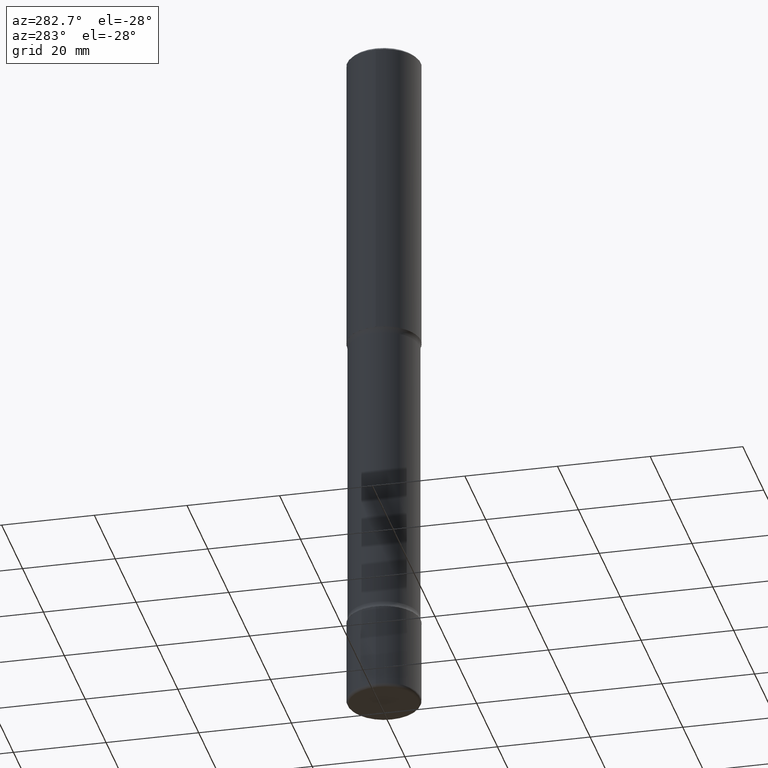
[diagram: clean part render]
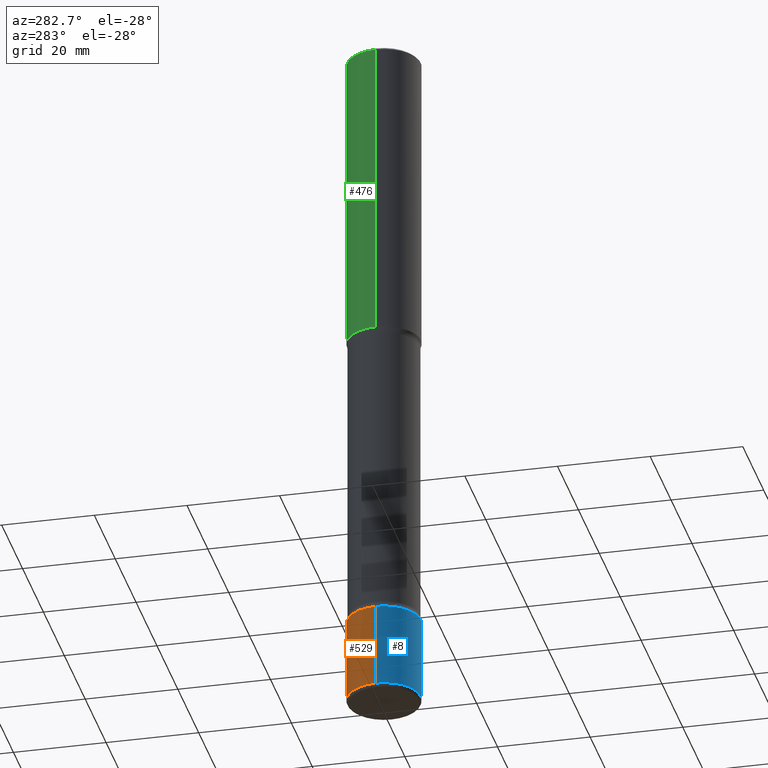
[diagram: same view with three faces highlighted in distinct colors, each labeled with its STEP entity id]
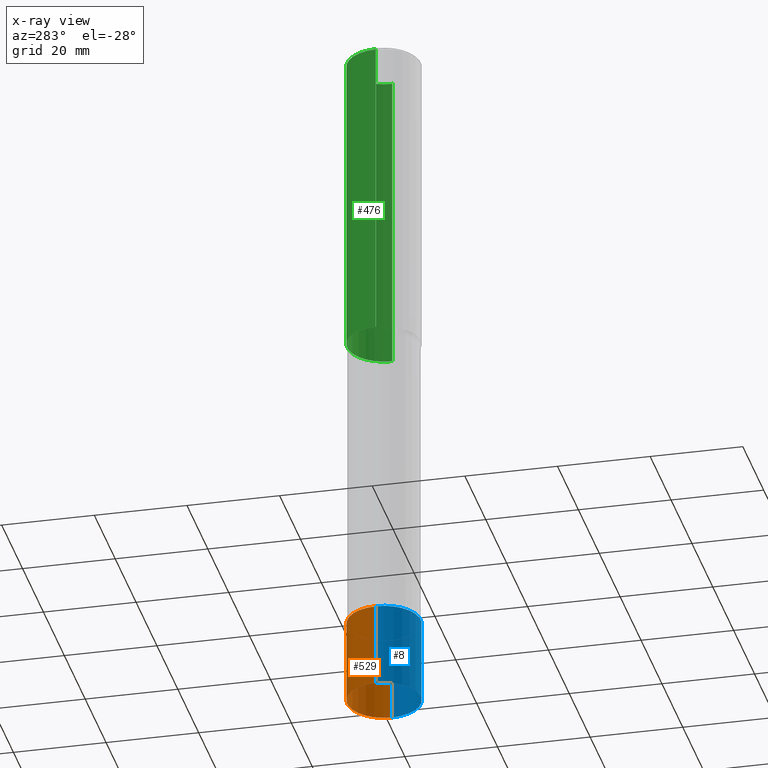
[diagram: x-ray of the same camera — body ghosted, the three highlighted faces saturated]
A machine part, auxiliary view with three faces highlighted in distinct colors.
The next image is the same camera in x-ray (body ghosted, the three faces saturated) — at least one of them is partly hidden behind the body in this view.
Their STEP definitions:

[orange] entity #529 — the highlighted cylindrical surface (partial cylindrical patch) has radius 7.9375 mm, axis along (-0, 0, 1).
#23 = CIRCLE ( 'NONE', #230, 0.3125000000000001665 ) ;
#25 = VERTEX_POINT ( 'NONE', #35 ) ;
#31 = EDGE_LOOP ( 'NONE', ( #110, #282, #100, #56 ) ) ;
#34 = EDGE_CURVE ( 'NONE', #102, #487, #118, .T. ) ;
#35 = CARTESIAN_POINT ( 'NONE',  ( 0.3125000000000001665, -2.051245286570347946E-14, -5.250000000000000888 ) ) ;
#43 = DIRECTION ( 'NONE',  ( -2.445468806185136597E-29, 3.491481338843145583E-15, 1.000000000000000000 ) ) ;
#45 = CARTESIAN_POINT ( 'NONE',  ( -0.3125000000000002220, -1.862369754364326626E-14, -5.969999999999999751 ) ) ;
#56 = ORIENTED_EDGE ( 'NONE', *, *, #477, .F. ) ;
#80 = CYLINDRICAL_SURFACE ( 'NONE', #276, 0.3125000000000001665 ) ;
#100 = ORIENTED_EDGE ( 'NONE', *, *, #553, .F. ) ;
#102 = VERTEX_POINT ( 'NONE', #45 ) ;
#110 = ORIENTED_EDGE ( 'NONE', *, *, #141, .T. ) ;
#115 = CARTESIAN_POINT ( 'NONE',  ( -0.3125000000000001665, -1.736676426165973636E-14, -5.250000000000000888 ) ) ;
#118 = LINE ( 'NONE', #209, #272 ) ;
#123 = DIRECTION ( 'NONE',  ( 1.000000000000000000, -6.982962677686261977E-15, 0.000000000000000000 ) ) ;
#141 = EDGE_CURVE ( 'NONE', #443, #102, #379, .T. ) ;
#191 = AXIS2_PLACEMENT_3D ( 'NONE', #266, #43, #123 ) ;
#209 = CARTESIAN_POINT ( 'NONE',  ( -0.3125000000000001665, 2.220446049250314264E-15, -1.537167215704658792E-29 ) ) ;
#230 = AXIS2_PLACEMENT_3D ( 'NONE', #251, #431, #261 ) ;
#251 = CARTESIAN_POINT ( 'NONE',  ( 1.283871123247196938E-28, -1.833027702892651638E-14, -5.250000000000000888 ) ) ;
#261 = DIRECTION ( 'NONE',  ( 1.000000000000000000, -6.982962677686271444E-15, 0.000000000000000000 ) ) ;
#266 = CARTESIAN_POINT ( 'NONE',  ( 1.459944877292526494E-28, -2.084414359289357934E-14, -5.969999999999999751 ) ) ;
#272 = VECTOR ( 'NONE', #306, 39.37007874015748143 ) ;
#276 = AXIS2_PLACEMENT_3D ( 'NONE', #352, #554, #471 ) ;
#282 = ORIENTED_EDGE ( 'NONE', *, *, #34, .T. ) ;
#288 = LINE ( 'NONE', #545, #340 ) ;
#300 = CARTESIAN_POINT ( 'NONE',  ( 0.3125000000000002220, -2.302631942967053926E-14, -5.969999999999999751 ) ) ;
#306 = DIRECTION ( 'NONE',  ( -2.445468806185136877E-29, 3.491481338843145188E-15, 1.000000000000000000 ) ) ;
#311 = FACE_OUTER_BOUND ( 'NONE', #31, .T. ) ;
#337 = DIRECTION ( 'NONE',  ( -2.445468806185136877E-29, 3.491481338843145188E-15, 1.000000000000000000 ) ) ;
#340 = VECTOR ( 'NONE', #337, 39.37007874015748143 ) ;
#352 = CARTESIAN_POINT ( 'NONE',  ( 0.000000000000000000, 0.000000000000000000, 0.000000000000000000 ) ) ;
#379 = CIRCLE ( 'NONE', #191, 0.3125000000000000555 ) ;
#431 = DIRECTION ( 'NONE',  ( -2.445468806185136597E-29, 3.491481338843145583E-15, 1.000000000000000000 ) ) ;
#443 = VERTEX_POINT ( 'NONE', #300 ) ;
#471 = DIRECTION ( 'NONE',  ( 1.000000000000000000, -6.982962677686266711E-15, 4.876176775795935232E-29 ) ) ;
#477 = EDGE_CURVE ( 'NONE', #443, #25, #288, .T. ) ;
#487 = VERTEX_POINT ( 'NONE', #115 ) ;
#529 = ADVANCED_FACE ( 'NONE', ( #311 ), #80, .T. ) ;
#545 = CARTESIAN_POINT ( 'NONE',  ( 0.3125000000000001665, -2.182175836776959530E-15, 1.523805242436230636E-29 ) ) ;
#553 = EDGE_CURVE ( 'NONE', #25, #487, #23, .T. ) ;
#554 = DIRECTION ( 'NONE',  ( -2.445468806185136597E-29, 3.491481338843145583E-15, 1.000000000000000000 ) ) ;

[blue] entity #8 — the highlighted cylindrical surface (partial cylindrical patch) has radius 7.9375 mm, axis along (-0, 0, 1).
#8 = ADVANCED_FACE ( 'NONE', ( #440 ), #227, .T. ) ;
#25 = VERTEX_POINT ( 'NONE', #35 ) ;
#34 = EDGE_CURVE ( 'NONE', #102, #487, #118, .T. ) ;
#35 = CARTESIAN_POINT ( 'NONE',  ( 0.3125000000000001665, -2.051245286570347946E-14, -5.250000000000000888 ) ) ;
#45 = CARTESIAN_POINT ( 'NONE',  ( -0.3125000000000002220, -1.862369754364326626E-14, -5.969999999999999751 ) ) ;
#51 = CARTESIAN_POINT ( 'NONE',  ( 0.000000000000000000, 0.000000000000000000, 0.000000000000000000 ) ) ;
#98 = EDGE_CURVE ( 'NONE', #487, #25, #370, .T. ) ;
#102 = VERTEX_POINT ( 'NONE', #45 ) ;
#115 = CARTESIAN_POINT ( 'NONE',  ( -0.3125000000000001665, -1.736676426165973636E-14, -5.250000000000000888 ) ) ;
#118 = LINE ( 'NONE', #209, #272 ) ;
#122 = AXIS2_PLACEMENT_3D ( 'NONE', #262, #432, #533 ) ;
#131 = DIRECTION ( 'NONE',  ( -2.445468806185136597E-29, 3.491481338843145583E-15, 1.000000000000000000 ) ) ;
#142 = AXIS2_PLACEMENT_3D ( 'NONE', #269, #131, #258 ) ;
#153 = AXIS2_PLACEMENT_3D ( 'NONE', #51, #418, #248 ) ;
#209 = CARTESIAN_POINT ( 'NONE',  ( -0.3125000000000001665, 2.220446049250314264E-15, -1.537167215704658792E-29 ) ) ;
#222 = CIRCLE ( 'NONE', #122, 0.3125000000000000555 ) ;
#227 = CYLINDRICAL_SURFACE ( 'NONE', #153, 0.3125000000000001665 ) ;
#248 = DIRECTION ( 'NONE',  ( 1.000000000000000000, -6.982962677686266711E-15, 4.876176775795935232E-29 ) ) ;
#258 = DIRECTION ( 'NONE',  ( 1.000000000000000000, -6.982962677686271444E-15, 0.000000000000000000 ) ) ;
#262 = CARTESIAN_POINT ( 'NONE',  ( 1.459944877292526494E-28, -2.084414359289357934E-14, -5.969999999999999751 ) ) ;
#269 = CARTESIAN_POINT ( 'NONE',  ( 1.283871123247196938E-28, -1.833027702892651638E-14, -5.250000000000000888 ) ) ;
#272 = VECTOR ( 'NONE', #306, 39.37007874015748143 ) ;
#278 = EDGE_CURVE ( 'NONE', #102, #443, #222, .T. ) ;
#288 = LINE ( 'NONE', #545, #340 ) ;
#300 = CARTESIAN_POINT ( 'NONE',  ( 0.3125000000000002220, -2.302631942967053926E-14, -5.969999999999999751 ) ) ;
#306 = DIRECTION ( 'NONE',  ( -2.445468806185136877E-29, 3.491481338843145188E-15, 1.000000000000000000 ) ) ;
#327 = ORIENTED_EDGE ( 'NONE', *, *, #477, .T. ) ;
#337 = DIRECTION ( 'NONE',  ( -2.445468806185136877E-29, 3.491481338843145188E-15, 1.000000000000000000 ) ) ;
#340 = VECTOR ( 'NONE', #337, 39.37007874015748143 ) ;
#362 = ORIENTED_EDGE ( 'NONE', *, *, #34, .F. ) ;
#370 = CIRCLE ( 'NONE', #142, 0.3125000000000001665 ) ;
#374 = EDGE_LOOP ( 'NONE', ( #362, #452, #327, #441 ) ) ;
#418 = DIRECTION ( 'NONE',  ( -2.445468806185136597E-29, 3.491481338843145583E-15, 1.000000000000000000 ) ) ;
#432 = DIRECTION ( 'NONE',  ( -2.445468806185136597E-29, 3.491481338843145583E-15, 1.000000000000000000 ) ) ;
#440 = FACE_OUTER_BOUND ( 'NONE', #374, .T. ) ;
#441 = ORIENTED_EDGE ( 'NONE', *, *, #98, .F. ) ;
#443 = VERTEX_POINT ( 'NONE', #300 ) ;
#452 = ORIENTED_EDGE ( 'NONE', *, *, #278, .T. ) ;
#477 = EDGE_CURVE ( 'NONE', #443, #25, #288, .T. ) ;
#487 = VERTEX_POINT ( 'NONE', #115 ) ;
#533 = DIRECTION ( 'NONE',  ( 1.000000000000000000, -6.982962677686261977E-15, 0.000000000000000000 ) ) ;
#545 = CARTESIAN_POINT ( 'NONE',  ( 0.3125000000000001665, -2.182175836776959530E-15, 1.523805242436230636E-29 ) ) ;

[green] entity #476 — the highlighted cylindrical surface (partial cylindrical patch) has radius 7.9375 mm, axis along (-0, 0, 1).
#3 = VECTOR ( 'NONE', #497, 39.37007874015748143 ) ;
#50 = CARTESIAN_POINT ( 'NONE',  ( -0.3125000000000005551, 2.112346210000099388E-15, -0.02000000000000000042 ) ) ;
#62 = CARTESIAN_POINT ( 'NONE',  ( -0.3125000000000007216, 2.220446049250318208E-15, -1.537167215704661595E-29 ) ) ;
#77 = CIRCLE ( 'NONE', #536, 0.3125000000000005551 ) ;
#103 = ORIENTED_EDGE ( 'NONE', *, *, #516, .T. ) ;
#107 = VERTEX_POINT ( 'NONE', #50 ) ;
#108 = LINE ( 'NONE', #62, #214 ) ;
#147 = ORIENTED_EDGE ( 'NONE', *, *, #491, .T. ) ;
#169 = DIRECTION ( 'NONE',  ( 1.000000000000000000, -6.982962677686268288E-15, 0.000000000000000000 ) ) ;
#194 = AXIS2_PLACEMENT_3D ( 'NONE', #241, #415, #376 ) ;
#203 = VERTEX_POINT ( 'NONE', #427 ) ;
#214 = VECTOR ( 'NONE', #236, 39.37007874015748143 ) ;
#234 = CARTESIAN_POINT ( 'NONE',  ( -0.3125000000000008327, -2.397038021369739380E-15, -2.625000000000000000 ) ) ;
#236 = DIRECTION ( 'NONE',  ( -2.445468806185136877E-29, 3.491481338843145188E-15, 1.000000000000000000 ) ) ;
#241 = CARTESIAN_POINT ( 'NONE',  ( 0.000000000000000000, 0.000000000000000000, 0.000000000000000000 ) ) ;
#244 = CYLINDRICAL_SURFACE ( 'NONE', #194, 0.3125000000000007216 ) ;
#279 = VERTEX_POINT ( 'NONE', #234 ) ;
#287 = ORIENTED_EDGE ( 'NONE', *, *, #525, .F. ) ;
#315 = DIRECTION ( 'NONE',  ( -2.445468806185136597E-29, 3.491481338843145583E-15, 1.000000000000000000 ) ) ;
#325 = EDGE_LOOP ( 'NONE', ( #103, #147, #287, #496 ) ) ;
#332 = FACE_OUTER_BOUND ( 'NONE', #325, .T. ) ;
#351 = DIRECTION ( 'NONE',  ( 1.000000000000000000, -6.982962677686269866E-15, 0.000000000000000000 ) ) ;
#376 = DIRECTION ( 'NONE',  ( 1.000000000000000000, -6.982962677686265922E-15, 4.876176775795935793E-29 ) ) ;
#415 = DIRECTION ( 'NONE',  ( -2.445468806185136597E-29, 3.491481338843145583E-15, 1.000000000000000000 ) ) ;
#427 = CARTESIAN_POINT ( 'NONE',  ( 0.3125000000000008327, -1.134731435124022127E-14, -2.625000000000000000 ) ) ;
#438 = CIRCLE ( 'NONE', #502, 0.3125000000000008327 ) ;
#453 = LINE ( 'NONE', #543, #3 ) ;
#459 = DIRECTION ( 'NONE',  ( -2.445468806185136597E-29, 3.491481338843145583E-15, 1.000000000000000000 ) ) ;
#462 = EDGE_CURVE ( 'NONE', #203, #528, #453, .T. ) ;
#475 = CARTESIAN_POINT ( 'NONE',  ( 0.3125000000000005551, -2.213735251080470461E-15, -0.02000000000000000042 ) ) ;
#476 = ADVANCED_FACE ( 'NONE', ( #332 ), #244, .T. ) ;
#491 = EDGE_CURVE ( 'NONE', #279, #107, #108, .T. ) ;
#496 = ORIENTED_EDGE ( 'NONE', *, *, #462, .F. ) ;
#497 = DIRECTION ( 'NONE',  ( -2.445468806185136877E-29, 3.491481338843145188E-15, 1.000000000000000000 ) ) ;
#502 = AXIS2_PLACEMENT_3D ( 'NONE', #504, #459, #351 ) ;
#504 = CARTESIAN_POINT ( 'NONE',  ( 6.419355616235983567E-29, -9.165138514463256612E-15, -2.625000000000000000 ) ) ;
#516 = EDGE_CURVE ( 'NONE', #203, #279, #438, .T. ) ;
#519 = CARTESIAN_POINT ( 'NONE',  ( 4.890937612370273159E-31, -6.982962677686291609E-17, -0.02000000000000000042 ) ) ;
#525 = EDGE_CURVE ( 'NONE', #528, #107, #77, .T. ) ;
#528 = VERTEX_POINT ( 'NONE', #475 ) ;
#536 = AXIS2_PLACEMENT_3D ( 'NONE', #519, #315, #169 ) ;
#543 = CARTESIAN_POINT ( 'NONE',  ( 0.3125000000000007216, -2.182175836776963080E-15, 1.523805242436233439E-29 ) ) ;